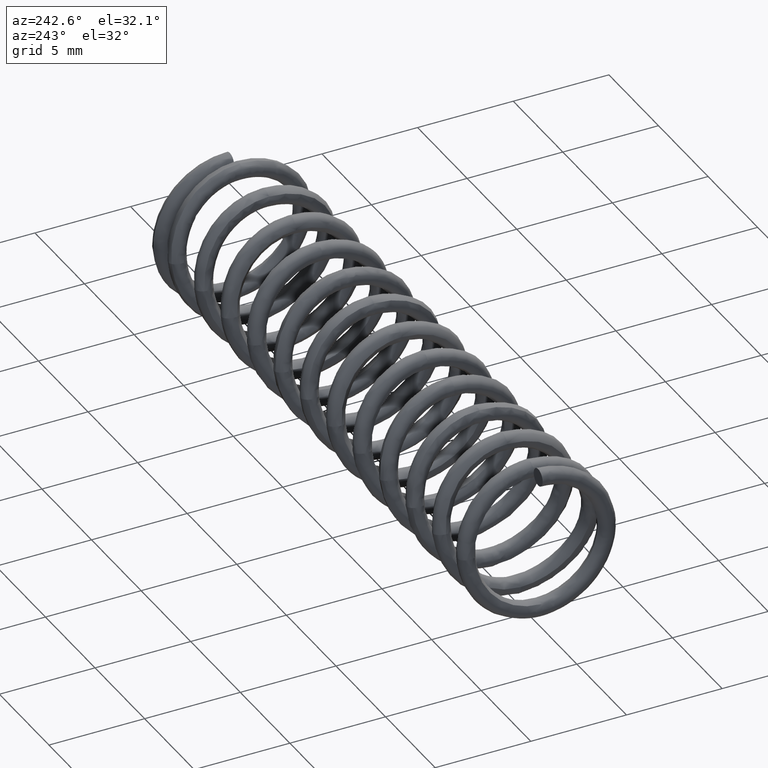
[diagram: clean part render]
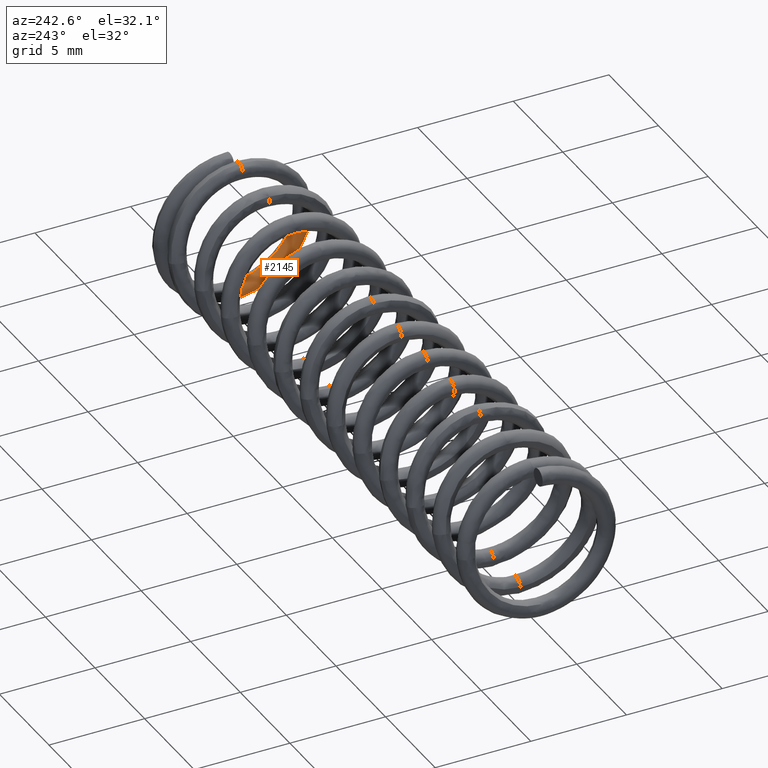
[diagram: same view with one face highlighted and labeled with its STEP entity id]
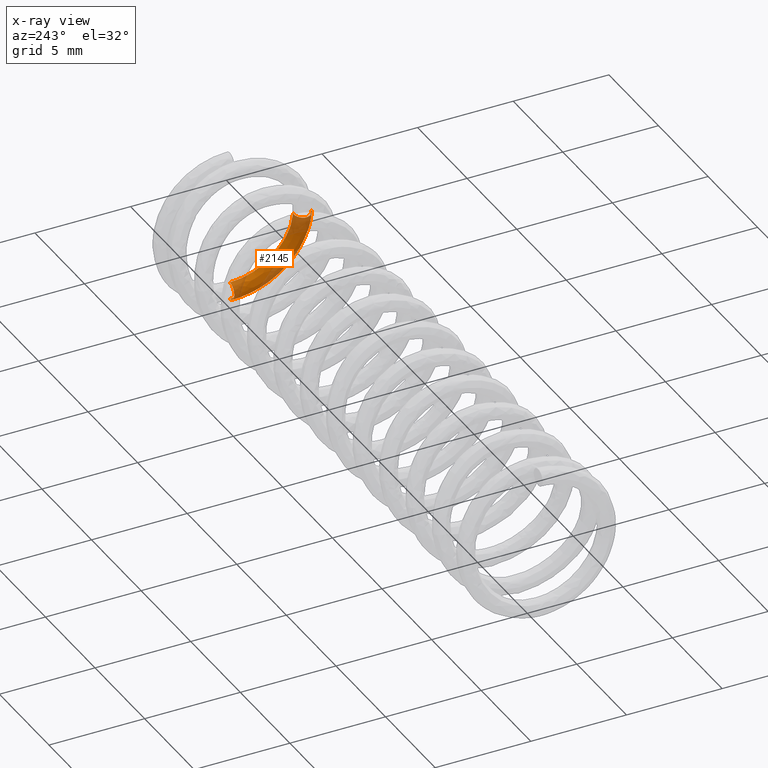
[diagram: x-ray of the same camera — body ghosted, the highlighted face saturated]
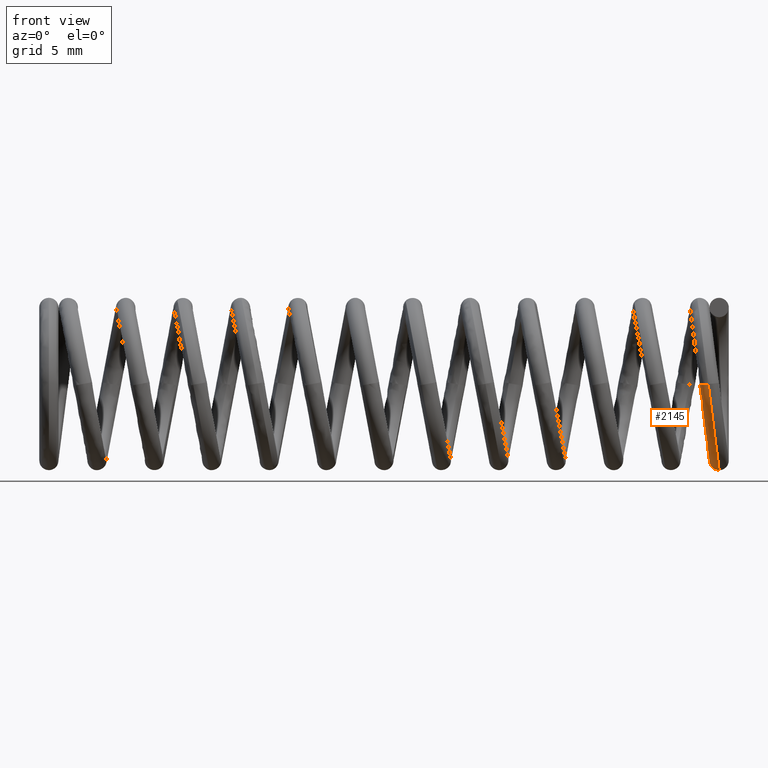
[diagram: same view with one face highlighted and labeled with its STEP entity id]
A machine part, auxiliary view. The second image highlights one B-rep face of the part: STEP entity #2145.
The next image is the same camera in x-ray: the body ghosted, the highlighted face saturated — about 42% of this face is hidden behind the body in this view.
A second angle (front view) of the same face is appended — the face is thin or edge-on in the first view.
In plain terms, the highlighted face is a freeform B-spline surface patch.
Its self-contained STEP definition (entity closure, byte-faithful):
#2145=ADVANCED_FACE('',(#2707),#2706,.T.);
#2706=( BOUNDED_SURFACE() B_SPLINE_SURFACE( 3,3,((#5039,#5040,#5041,#5042,#5043,#5044),(#5045,#5046,#5047,#5048,#5049,#5050),(#5051,#5052,#5053,#5054,#5055,#5056),(#5057,#5058,#5059,#5060,#5061,#5062),(#5063,#5064,#5065,#5066,#5067,#5068),(#5069,#5070,#5071,#5072,#5073,#5074)), .UNSPECIFIED.,.F.,.F.,.F.) B_SPLINE_SURFACE_WITH_KNOTS((4,2,4),(4,2,4),(5.00000000000E-01,7.50000000000E-01,1.00000000000E+00),(9.42672158631E-01,9.52252256090E-01,9.61832353550E-01), .UNSPECIFIED. ) GEOMETRIC_REPRESENTATION_ITEM() RATIONAL_B_SPLINE_SURFACE(((1.00000000000E+00,1.00000000000E+00,1.00000000000E+00,1.00000000000E+00,1.00000000000E+00,1.00000000000E+00),(1.00000000000E+00,1.00000000000E+00,1.00000000000E+00,1.00000000000E+00,1.00000000000E+00,1.00000000000E+00),(1.00000000000E+00,1.00000000000E+00,1.00000000000E+00,1.00000000000E+00,1.00000000000E+00,1.00000000000E+00),(1.00000000000E+00,1.00000000000E+00,1.00000000000E+00,1.00000000000E+00,1.00000000000E+00,1.00000000000E+00),(1.00000000000E+00,1.00000000000E+00,1.00000000000E+00,1.00000000000E+00,1.00000000000E+00,1.00000000000E+00),(1.00000000000E+00,1.00000000000E+00,1.00000000000E+00,1.00000000000E+00,1.00000000000E+00,1.00000000000E+00))) REPRESENTATION_ITEM('') SURFACE() );
#2707=FACE_OUTER_BOUND('',#5075,.T.);
#5039=CARTESIAN_POINT('',(-5.06140179618E-01,-3.99642763987E+00,-7.11636079656E-03));
#5040=CARTESIAN_POINT('',(-3.73440340636E-01,-3.99642763987E+00,-1.05397064610E+00));
#5041=CARTESIAN_POINT('',(-2.42271457554E-01,-3.56708951603E+00,-2.08874739041E+00));
#5042=CARTESIAN_POINT('',(-5.48167383718E-02,-2.08944045461E+00,-3.56755684174E+00));
#5043=CARTESIAN_POINT('',(5.55111512313E-17,-1.05205385276E+00,-4.00000000000E+00));
#5044=CARTESIAN_POINT('',(5.55111512313E-17,-4.89858719659E-16,-4.00000000000E+00));
#5045=CARTESIAN_POINT('',(-7.38033510837E-01,-3.96679748930E+00,-3.65112901061E-02));
#5046=CARTESIAN_POINT('',(-6.06302840913E-01,-3.96679748930E+00,-1.07571990840E+00));
#5047=CARTESIAN_POINT('',(-4.76095574562E-01,-3.54058819438E+00,-2.10291056517E+00));
#5048=CARTESIAN_POINT('',(-2.90025692016E-01,-2.07385538284E+00,-3.57079519414E+00));
#5049=CARTESIAN_POINT('',(-2.35619449019E-01,-1.04419134376E+00,-4.00000000000E+00));
#5050=CARTESIAN_POINT('',(-2.35619449019E-01,-4.89858719659E-16,-4.00000000000E+00));
#5051=CARTESIAN_POINT('',(-9.22278568514E-01,-3.72715954649E+00,-5.98662974171E-02));
#5052=CARTESIAN_POINT('',(-7.98386187449E-01,-3.72715954649E+00,-1.03723952582E+00));
#5053=CARTESIAN_POINT('',(-6.75956129477E-01,-3.32625508838E+00,-2.00307664981E+00));
#5054=CARTESIAN_POINT('',(-5.01086304851E-01,-1.94780895836E+00,-3.38260526631E+00));
#5055=CARTESIAN_POINT('',(-4.50000000000E-01,-9.80602214246E-01,-3.78561944902E+00));
#5056=CARTESIAN_POINT('',(-4.50000000000E-01,-4.63604674103E-16,-3.78561944902E+00));
#5057=CARTESIAN_POINT('',(-8.63488709895E-01,-3.25966161523E+00,-5.24140618175E-02));
#5058=CARTESIAN_POINT('',(-7.54887662846E-01,-3.25966161523E+00,-9.09155655202E-01));
#5059=CARTESIAN_POINT('',(-6.47629779973E-01,-2.90812312448E+00,-1.75530117564E+00));
#5060=CARTESIAN_POINT('',(-4.94609600048E-01,-1.70191115939E+00,-2.96246037283E+00));
#5061=CARTESIAN_POINT('',(-4.50000000000E-01,-8.56549294449E-01,-3.31438055098E+00));
#5062=CARTESIAN_POINT('',(-4.50000000000E-01,-4.05894553291E-16,-3.31438055098E+00));
#5063=CARTESIAN_POINT('',(-6.25753151603E-01,-3.07394220956E+00,-2.22785685129E-02));
#5064=CARTESIAN_POINT('',(-5.23226778420E-01,-3.07394220956E+00,-8.31097734731E-01));
#5065=CARTESIAN_POINT('',(-4.21996232042E-01,-2.74201496733E+00,-1.62969426727E+00));
#5066=CARTESIAN_POINT('',(-2.77656097004E-01,-1.60422518042E+00,-2.76837755480E+00));
#5067=CARTESIAN_POINT('',(-2.35619449019E-01,-8.07267719073E-01,-3.10000000000E+00));
#5068=CARTESIAN_POINT('',(-2.35619449019E-01,-3.79640507736E-16,-3.10000000000E+00));
#5069=CARTESIAN_POINT('',(-3.93859820383E-01,-3.10357236013E+00,7.11636079657E-03));
#5070=CARTESIAN_POINT('',(-2.90364278143E-01,-3.10357236013E+00,-8.09348472430E-01));
#5071=CARTESIAN_POINT('',(-1.88172115033E-01,-2.76851628899E+00,-1.61553109252E+00));
#5072=CARTESIAN_POINT('',(-4.24471433593E-02,-1.61981025219E+00,-2.76513920239E+00));
#5073=CARTESIAN_POINT('',(0.00000000000E+00,-8.15130228075E-01,-3.10000000000E+00));
#5074=CARTESIAN_POINT('',(0.00000000000E+00,-3.79640507736E-16,-3.10000000000E+00));
#5075=EDGE_LOOP('',(#7104,#7105,#7106,#7107));
#7104=ORIENTED_EDGE('',*,*,#7459,.T.);
#7105=ORIENTED_EDGE('',*,*,#7461,.T.);
#7106=ORIENTED_EDGE('',*,*,#7463,.F.);
#7107=ORIENTED_EDGE('',*,*,#7462,.F.);
#7459=EDGE_CURVE('',#8477,#8476,#8510,.T.);
#7461=EDGE_CURVE('',#8476,#8516,#8524,.T.);
#7462=EDGE_CURVE('',#8477,#8517,#8530,.T.);
#7463=EDGE_CURVE('',#8517,#8516,#8536,.T.);
#8476=VERTEX_POINT('',#9792);
#8477=VERTEX_POINT('',#9793);
#8510=(BOUNDED_CURVE() B_SPLINE_CURVE(3,(#9826,#9827,#9828,#9829,#9830,#9831),.UNSPECIFIED.,.F.,.F.) B_SPLINE_CURVE_WITH_KNOTS((4,2,4),(5.00000000000E-01,7.50000000000E-01,1.00000000000E+00),.UNSPECIFIED.) CURVE() GEOMETRIC_REPRESENTATION_ITEM() RATIONAL_B_SPLINE_CURVE((1.00000000000E+00,1.00000000000E+00,1.00000000000E+00,1.00000000000E+00,1.00000000000E+00,1.00000000000E+00)) REPRESENTATION_ITEM('') );
#8516=VERTEX_POINT('',#9832);
#8517=VERTEX_POINT('',#9833);
#8524=(BOUNDED_CURVE() B_SPLINE_CURVE(3,(#9844,#9845,#9846,#9847,#9848,#9849),.UNSPECIFIED.,.F.,.F.) B_SPLINE_CURVE_WITH_KNOTS((4,2,4),(9.42672158631E-01,9.52252256090E-01,9.61832353550E-01),.UNSPECIFIED.) CURVE() GEOMETRIC_REPRESENTATION_ITEM() RATIONAL_B_SPLINE_CURVE((1.00000000000E+00,1.00000000000E+00,1.00000000000E+00,1.00000000000E+00,1.00000000000E+00,1.00000000000E+00)) REPRESENTATION_ITEM('') );
#8530=(BOUNDED_CURVE() B_SPLINE_CURVE(3,(#9850,#9851,#9852,#9853,#9854,#9855),.UNSPECIFIED.,.F.,.F.) B_SPLINE_CURVE_WITH_KNOTS((4,2,4),(9.42672158631E-01,9.52252256090E-01,9.61832353550E-01),.UNSPECIFIED.) CURVE() GEOMETRIC_REPRESENTATION_ITEM() RATIONAL_B_SPLINE_CURVE((1.00000000000E+00,1.00000000000E+00,1.00000000000E+00,1.00000000000E+00,1.00000000000E+00,1.00000000000E+00)) REPRESENTATION_ITEM('') );
#8536=(BOUNDED_CURVE() B_SPLINE_CURVE(3,(#9856,#9857,#9858,#9859,#9860,#9861,#9862,#9863,#9864,#9865),.UNSPECIFIED.,.F.,.F.) B_SPLINE_CURVE_WITH_KNOTS((4,2,2,2,4),(5.00000000000E-01,6.25000000000E-01,7.50000000000E-01,8.75000000000E-01,1.00000000000E+00),.UNSPECIFIED.) CURVE() GEOMETRIC_REPRESENTATION_ITEM() RATIONAL_B_SPLINE_CURVE((1.00000000000E+00,1.00000000000E+00,1.00000000000E+00,1.00000000000E+00,1.00000000000E+00,1.00000000000E+00,1.00000000000E+00,1.00000000000E+00,1.00000000000E+00,1.00000000000E+00)) REPRESENTATION_ITEM('') );
#9792=CARTESIAN_POINT('',(-3.93859820383E-01,-3.10357236013E+00,7.11636079657E-03));
#9793=CARTESIAN_POINT('',(-5.06140179618E-01,-3.99642763987E+00,-7.11636079656E-03));
#9826=CARTESIAN_POINT('',(-5.06140179618E-01,-3.99642763987E+00,-7.11636079656E-03));
#9827=CARTESIAN_POINT('',(-7.38033510837E-01,-3.96679748930E+00,-3.65112901061E-02));
#9828=CARTESIAN_POINT('',(-9.22278568514E-01,-3.72715954649E+00,-5.98662974171E-02));
#9829=CARTESIAN_POINT('',(-8.63488709895E-01,-3.25966161523E+00,-5.24140618175E-02));
#9830=CARTESIAN_POINT('',(-6.25753151603E-01,-3.07394220956E+00,-2.22785685129E-02));
#9831=CARTESIAN_POINT('',(-3.93859820383E-01,-3.10357236013E+00,7.11636079657E-03));
#9832=CARTESIAN_POINT('',(2.75545529808E-17,-1.89820253868E-16,-3.10000000000E+00));
#9833=CARTESIAN_POINT('',(0.00000000000E+00,0.00000000000E+00,-4.00000000000E+00));
#9844=CARTESIAN_POINT('',(-3.93859820383E-01,-3.10357236013E+00,7.11636079657E-03));
#9845=CARTESIAN_POINT('',(-2.90364278143E-01,-3.10357236013E+00,-8.09348472430E-01));
#9846=CARTESIAN_POINT('',(-1.88172115033E-01,-2.76851628899E+00,-1.61553109252E+00));
#9847=CARTESIAN_POINT('',(-4.24471433593E-02,-1.61981025219E+00,-2.76513920239E+00));
#9848=CARTESIAN_POINT('',(0.00000000000E+00,-8.15130228075E-01,-3.10000000000E+00));
#9849=CARTESIAN_POINT('',(0.00000000000E+00,-3.79640507736E-16,-3.10000000000E+00));
#9850=CARTESIAN_POINT('',(-5.06140179618E-01,-3.99642763987E+00,-7.11636079656E-03));
#9851=CARTESIAN_POINT('',(-3.73440340636E-01,-3.99642763987E+00,-1.05397064610E+00));
#9852=CARTESIAN_POINT('',(-2.42271457554E-01,-3.56708951603E+00,-2.08874739041E+00));
#9853=CARTESIAN_POINT('',(-5.48167383718E-02,-2.08944045461E+00,-3.56755684174E+00));
#9854=CARTESIAN_POINT('',(5.55111512313E-17,-1.05205385276E+00,-4.00000000000E+00));
#9855=CARTESIAN_POINT('',(5.55111512313E-17,-4.89858719659E-16,-4.00000000000E+00));
#9856=CARTESIAN_POINT('',(0.00000000000E+00,0.00000000000E+00,-4.00000000000E+00));
#9857=CARTESIAN_POINT('',(-1.17809724510E-01,0.00000000000E+00,-4.00000000000E+00));
#9858=CARTESIAN_POINT('',(-2.34893996443E-01,0.00000000000E+00,-3.95150210662E+00));
#9859=CARTESIAN_POINT('',(-4.01502106624E-01,0.00000000000E+00,-3.78489399644E+00));
#9860=CARTESIAN_POINT('',(-4.50000000000E-01,-0.00000000000E+00,-3.66780972451E+00));
#9861=CARTESIAN_POINT('',(-4.50000000000E-01,0.00000000000E+00,-3.43219027549E+00));
#9862=CARTESIAN_POINT('',(-4.01502106624E-01,-0.00000000000E+00,-3.31510600356E+00));
#9863=CARTESIAN_POINT('',(-2.34893996443E-01,0.00000000000E+00,-3.14849789338E+00));
#9864=CARTESIAN_POINT('',(-1.17809724510E-01,-0.00000000000E+00,-3.10000000000E+00));
#9865=CARTESIAN_POINT('',(2.77555756156E-17,0.00000000000E+00,-3.10000000000E+00));